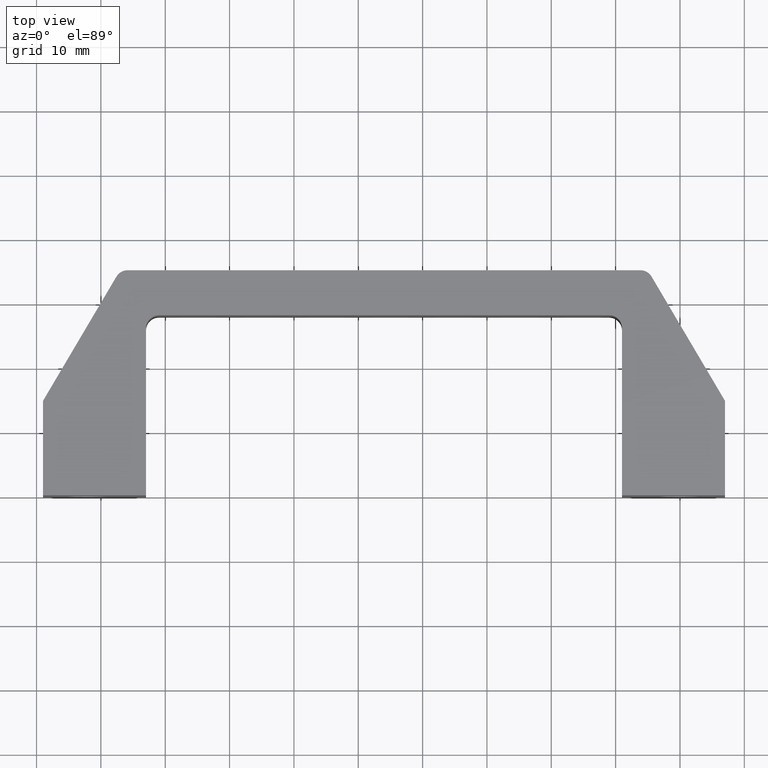
[diagram: clean part render]
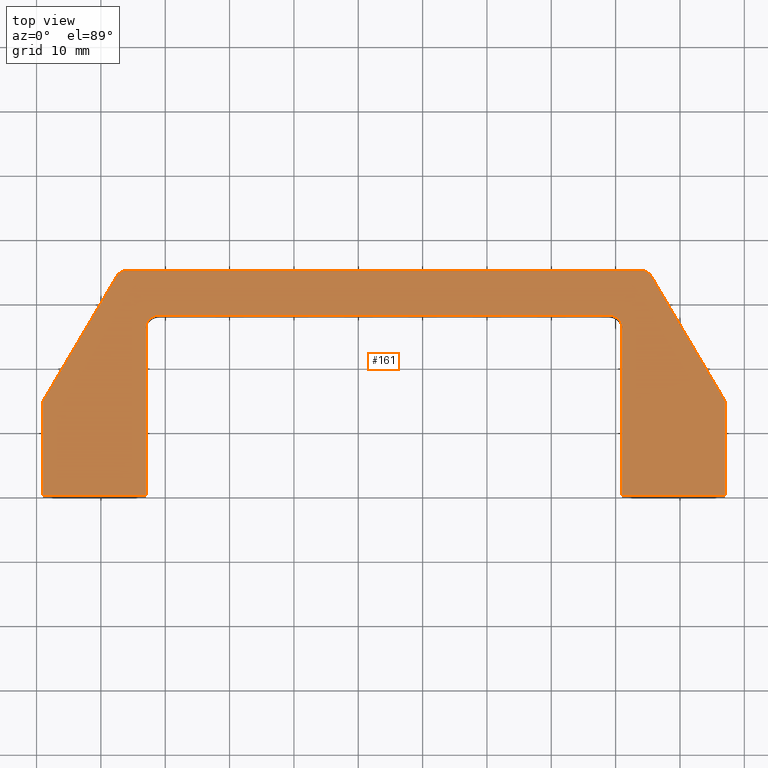
[diagram: same view with one face highlighted and labeled with its STEP entity id]
A machine part, top view. The second image highlights one B-rep face of the part: STEP entity #161.
In plain terms, the highlighted planar face has unit normal (0, 0, -1).
Its self-contained STEP definition (entity closure, byte-faithful):
#2 = DIRECTION ( 'NONE',  ( 0.0000000000000000000, 0.0000000000000000000, -1.000000000000000000 ) ) ;
#3 = CARTESIAN_POINT ( 'NONE',  ( 107.0000000000000000, 0.0000000000000000000, 0.0000000000000000000 ) ) ;
#4 = PLANE ( 'NONE',  #255 ) ;
#35 = CARTESIAN_POINT ( 'NONE',  ( 54.00000000000000700, 28.00000000000000400, 0.0000000000000000000 ) ) ;
#38 = DIRECTION ( 'NONE',  ( -1.000000000000000000, 0.0000000000000000000, 0.0000000000000000000 ) ) ;
#63 = EDGE_CURVE ( 'NONE', #1172, #1182, #593, .T. ) ;
#64 = DIRECTION ( 'NONE',  ( 1.000000000000000000, -0.0000000000000000000, -0.0000000000000000000 ) ) ;
#65 = DIRECTION ( 'NONE',  ( -0.0000000000000000000, -1.000000000000000000, -0.0000000000000000000 ) ) ;
#66 = CARTESIAN_POINT ( 'NONE',  ( 16.99999997599999400, 17.50000000000000000, 0.0000000000000000000 ) ) ;
#69 = CARTESIAN_POINT ( 'NONE',  ( 54.00000000000000000, 35.00000000000000000, 0.0000000000000000000 ) ) ;
#72 = DIRECTION ( 'NONE',  ( 0.0000000000000000000, 1.000000000000000000, 0.0000000000000000000 ) ) ;
#73 = CARTESIAN_POINT ( 'NONE',  ( 1.000000000000000000, 17.50000000000000000, 0.0000000000000000000 ) ) ;
#82 = CARTESIAN_POINT ( 'NONE',  ( 1.000000000000000000, 14.69230769200000000, 0.0000000000000000000 ) ) ;
#83 = DIRECTION ( 'NONE',  ( 0.5087293121296429000, 0.8609265282125415600, 0.0000000000000000000 ) ) ;
#84 = CARTESIAN_POINT ( 'NONE',  ( 14.14126042499999900, 33.00000000000000000, 0.0000000000000000000 ) ) ;
#85 = DIRECTION ( 'NONE',  ( 0.0000000000000000000, 0.0000000000000000000, -1.000000000000000000 ) ) ;
#86 = DIRECTION ( 'NONE',  ( -1.000000000000000000, 0.0000000000000000000, 0.0000000000000000000 ) ) ;
#109 = DIRECTION ( 'NONE',  ( 0.5087293121296425600, -0.8609265282125419000, 0.0000000000000000000 ) ) ;
#111 = CARTESIAN_POINT ( 'NONE',  ( 95.58059263100000200, 34.01745862400000000, 0.0000000000000000000 ) ) ;
#117 = DIRECTION ( 'NONE',  ( -1.000000000000000000, 0.0000000000000000000, 0.0000000000000000000 ) ) ;
#118 = DIRECTION ( 'NONE',  ( 0.0000000000000000000, 0.0000000000000000000, -1.000000000000000000 ) ) ;
#119 = CARTESIAN_POINT ( 'NONE',  ( 93.85873957499998700, 33.00000000000000000, 0.0000000000000000000 ) ) ;
#161 = ADVANCED_FACE ( 'NONE', ( #579 ), #4, .F. ) ;
#207 = AXIS2_PLACEMENT_3D ( 'NONE', #84, #85, #86 ) ;
#209 = AXIS2_PLACEMENT_3D ( 'NONE', #119, #118, #117 ) ;
#214 = AXIS2_PLACEMENT_3D ( 'NONE', #345, #344, #342 ) ;
#215 = AXIS2_PLACEMENT_3D ( 'NONE', #323, #322, #320 ) ;
#242 = EDGE_CURVE ( 'NONE', #1166, #1187, #922, .T. ) ;
#255 = AXIS2_PLACEMENT_3D ( 'NONE', #3, #2, #521 ) ;
#283 = DIRECTION ( 'NONE',  ( -0.0000000000000000000, -1.000000000000000000, -0.0000000000000000000 ) ) ;
#287 = EDGE_CURVE ( 'NONE', #1192, #1174, #932, .T. ) ;
#288 = EDGE_CURVE ( 'NONE', #1174, #1213, #935, .T. ) ;
#292 = EDGE_CURVE ( 'NONE', #1213, #1211, #940, .T. ) ;
#294 = EDGE_CURVE ( 'NONE', #1211, #1205, #945, .T. ) ;
#297 = EDGE_CURVE ( 'NONE', #1205, #1164, #947, .T. ) ;
#302 = EDGE_CURVE ( 'NONE', #1187, #1192, #957, .T. ) ;
#305 = EDGE_CURVE ( 'NONE', #1176, #1166, #964, .T. ) ;
#320 = DIRECTION ( 'NONE',  ( -1.000000000000000000, 0.0000000000000000000, 0.0000000000000000000 ) ) ;
#322 = DIRECTION ( 'NONE',  ( -0.0000000000000000000, -0.0000000000000000000, 1.000000000000000000 ) ) ;
#323 = CARTESIAN_POINT ( 'NONE',  ( 19.00000000000000000, 26.00000000000000400, 0.0000000000000000000 ) ) ;
#335 = DIRECTION ( 'NONE',  ( 0.0000000000000000000, 1.000000000000000000, 0.0000000000000000000 ) ) ;
#336 = CARTESIAN_POINT ( 'NONE',  ( 91.00000002399998800, 17.50000000000000000, 0.0000000000000000000 ) ) ;
#339 = DIRECTION ( 'NONE',  ( -1.000000000000000000, 0.0000000000000000000, 0.0000000000000000000 ) ) ;
#340 = CARTESIAN_POINT ( 'NONE',  ( 54.00000000000000000, 0.0000000000000000000, 0.0000000000000000000 ) ) ;
#342 = DIRECTION ( 'NONE',  ( -1.000000000000000000, 0.0000000000000000000, 0.0000000000000000000 ) ) ;
#344 = DIRECTION ( 'NONE',  ( -0.0000000000000000000, -0.0000000000000000000, 1.000000000000000000 ) ) ;
#345 = CARTESIAN_POINT ( 'NONE',  ( 89.00000000000000000, 26.00000000000000400, 0.0000000000000000000 ) ) ;
#372 = CARTESIAN_POINT ( 'NONE',  ( 107.0000000000000000, 17.50000000000000000, 0.0000000000000000000 ) ) ;
#389 = DIRECTION ( 'NONE',  ( -1.000000000000000000, -0.0000000000000000000, -0.0000000000000000000 ) ) ;
#390 = CARTESIAN_POINT ( 'NONE',  ( 9.000000000000001800, 0.0000000000000000000, 0.0000000000000000000 ) ) ;
#521 = DIRECTION ( 'NONE',  ( -1.000000000000000000, 0.0000000000000000000, 0.0000000000000000000 ) ) ;
#579 = FACE_OUTER_BOUND ( 'NONE', #627, .T. ) ;
#591 = VECTOR ( 'NONE', #38, 1000.000000000000000 ) ;
#593 = LINE ( 'NONE', #35, #591 ) ;
#627 = EDGE_LOOP ( 'NONE', ( #997, #996, #995, #839, #840, #838, #837, #836, #835, #834, #831, #829, #822, #821 ) ) ;
#821 = ORIENTED_EDGE ( 'NONE', *, *, #297, .F. ) ;
#822 = ORIENTED_EDGE ( 'NONE', *, *, #1161, .F. ) ;
#829 = ORIENTED_EDGE ( 'NONE', *, *, #1004, .F. ) ;
#831 = ORIENTED_EDGE ( 'NONE', *, *, #1005, .F. ) ;
#834 = ORIENTED_EDGE ( 'NONE', *, *, #1003, .F. ) ;
#835 = ORIENTED_EDGE ( 'NONE', *, *, #63, .F. ) ;
#836 = ORIENTED_EDGE ( 'NONE', *, *, #1010, .F. ) ;
#837 = ORIENTED_EDGE ( 'NONE', *, *, #305, .F. ) ;
#838 = ORIENTED_EDGE ( 'NONE', *, *, #242, .F. ) ;
#839 = ORIENTED_EDGE ( 'NONE', *, *, #287, .F. ) ;
#840 = ORIENTED_EDGE ( 'NONE', *, *, #302, .F. ) ;
#855 = LINE ( 'NONE', #372, #856 ) ;
#856 = VECTOR ( 'NONE', #283, 1000.000000000000000 ) ;
#863 = VECTOR ( 'NONE', #339, 1000.000000000000000 ) ;
#866 = CIRCLE ( 'NONE', #214, 1.999999999999988000 ) ;
#868 = LINE ( 'NONE', #336, #992 ) ;
#922 = LINE ( 'NONE', #390, #923 ) ;
#923 = VECTOR ( 'NONE', #389, 1000.000000000000000 ) ;
#932 = LINE ( 'NONE', #82, #933 ) ;
#933 = VECTOR ( 'NONE', #83, 1000.000000000000100 ) ;
#935 = CIRCLE ( 'NONE', #207, 2.000000000000000000 ) ;
#940 = LINE ( 'NONE', #69, #941 ) ;
#941 = VECTOR ( 'NONE', #64, 1000.000000000000000 ) ;
#945 = CIRCLE ( 'NONE', #209, 2.000000000000001800 ) ;
#947 = LINE ( 'NONE', #111, #949 ) ;
#949 = VECTOR ( 'NONE', #109, 1000.000000000000000 ) ;
#957 = LINE ( 'NONE', #73, #958 ) ;
#958 = VECTOR ( 'NONE', #72, 1000.000000000000000 ) ;
#963 = CIRCLE ( 'NONE', #215, 1.999999999999998200 ) ;
#964 = LINE ( 'NONE', #66, #965 ) ;
#965 = VECTOR ( 'NONE', #65, 1000.000000000000000 ) ;
#988 = LINE ( 'NONE', #340, #863 ) ;
#992 = VECTOR ( 'NONE', #335, 1000.000000000000000 ) ;
#995 = ORIENTED_EDGE ( 'NONE', *, *, #288, .F. ) ;
#996 = ORIENTED_EDGE ( 'NONE', *, *, #292, .F. ) ;
#997 = ORIENTED_EDGE ( 'NONE', *, *, #294, .F. ) ;
#1000 = CARTESIAN_POINT ( 'NONE',  ( 107.0000000000000000, 14.69230769200000200, 0.0000000000000000000 ) ) ;
#1003 = EDGE_CURVE ( 'NONE', #1212, #1172, #866, .T. ) ;
#1004 = EDGE_CURVE ( 'NONE', #1215, #1209, #988, .T. ) ;
#1005 = EDGE_CURVE ( 'NONE', #1209, #1212, #868, .T. ) ;
#1010 = EDGE_CURVE ( 'NONE', #1182, #1176, #963, .T. ) ;
#1013 = CARTESIAN_POINT ( 'NONE',  ( 16.99999998499999900, 0.0000000000000000000, 0.0000000000000000000 ) ) ;
#1019 = CARTESIAN_POINT ( 'NONE',  ( 89.00000000000000000, 28.00000000000000400, 0.0000000000000000000 ) ) ;
#1021 = CARTESIAN_POINT ( 'NONE',  ( 12.41940736897097800, 34.01745862444020900, 0.0000000000000000000 ) ) ;
#1023 = CARTESIAN_POINT ( 'NONE',  ( 16.99999998799999500, 26.00000000000000400, 0.0000000000000000000 ) ) ;
#1029 = CARTESIAN_POINT ( 'NONE',  ( 19.00000000020510200, 28.00000000000000400, 0.0000000000000000000 ) ) ;
#1034 = CARTESIAN_POINT ( 'NONE',  ( 1.000000000000000000, 0.0000000000000000000, 0.0000000000000000000 ) ) ;
#1039 = CARTESIAN_POINT ( 'NONE',  ( 1.000000000000000000, 14.69230769200000000, 0.0000000000000000000 ) ) ;
#1052 = CARTESIAN_POINT ( 'NONE',  ( 95.58059263099822500, 34.01745862400300500, 0.0000000000000000000 ) ) ;
#1056 = CARTESIAN_POINT ( 'NONE',  ( 91.00000001599998700, 0.0000000000000000000, 0.0000000000000000000 ) ) ;
#1058 = CARTESIAN_POINT ( 'NONE',  ( 93.85873957520510700, 35.00000000000000700, 0.0000000000000000000 ) ) ;
#1059 = CARTESIAN_POINT ( 'NONE',  ( 91.00000001200000100, 25.99999999958979700, 0.0000000000000000000 ) ) ;
#1060 = CARTESIAN_POINT ( 'NONE',  ( 14.14126042499999700, 35.00000000000000000, 0.0000000000000000000 ) ) ;
#1062 = CARTESIAN_POINT ( 'NONE',  ( 107.0000000000000000, 0.0000000000000000000, 0.0000000000000000000 ) ) ;
#1161 = EDGE_CURVE ( 'NONE', #1164, #1215, #855, .T. ) ;
#1164 = VERTEX_POINT ( 'NONE', #1000 ) ;
#1166 = VERTEX_POINT ( 'NONE', #1013 ) ;
#1172 = VERTEX_POINT ( 'NONE', #1019 ) ;
#1174 = VERTEX_POINT ( 'NONE', #1021 ) ;
#1176 = VERTEX_POINT ( 'NONE', #1023 ) ;
#1182 = VERTEX_POINT ( 'NONE', #1029 ) ;
#1187 = VERTEX_POINT ( 'NONE', #1034 ) ;
#1192 = VERTEX_POINT ( 'NONE', #1039 ) ;
#1205 = VERTEX_POINT ( 'NONE', #1052 ) ;
#1209 = VERTEX_POINT ( 'NONE', #1056 ) ;
#1211 = VERTEX_POINT ( 'NONE', #1058 ) ;
#1212 = VERTEX_POINT ( 'NONE', #1059 ) ;
#1213 = VERTEX_POINT ( 'NONE', #1060 ) ;
#1215 = VERTEX_POINT ( 'NONE', #1062 ) ;